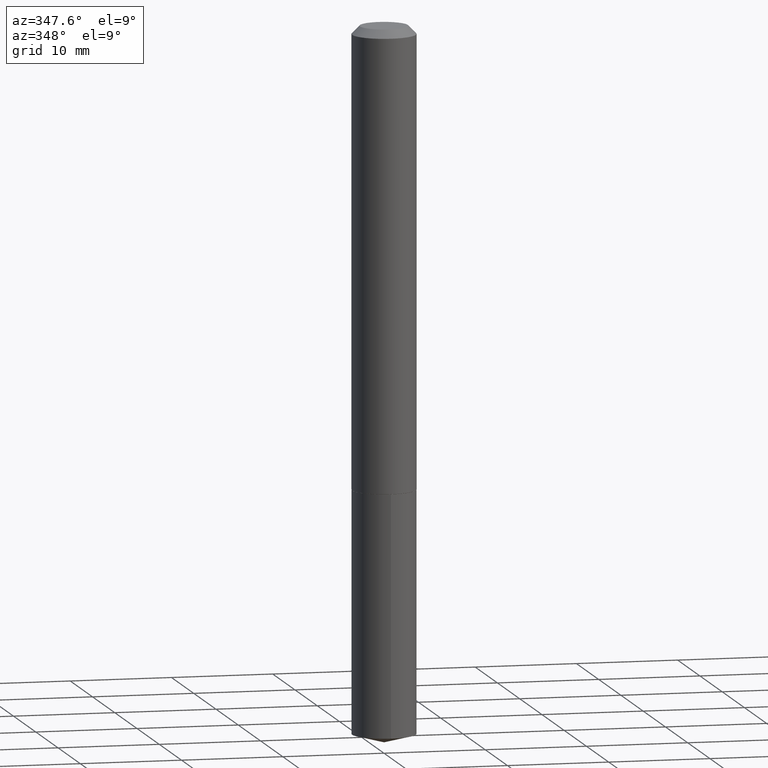
[diagram: clean part render]
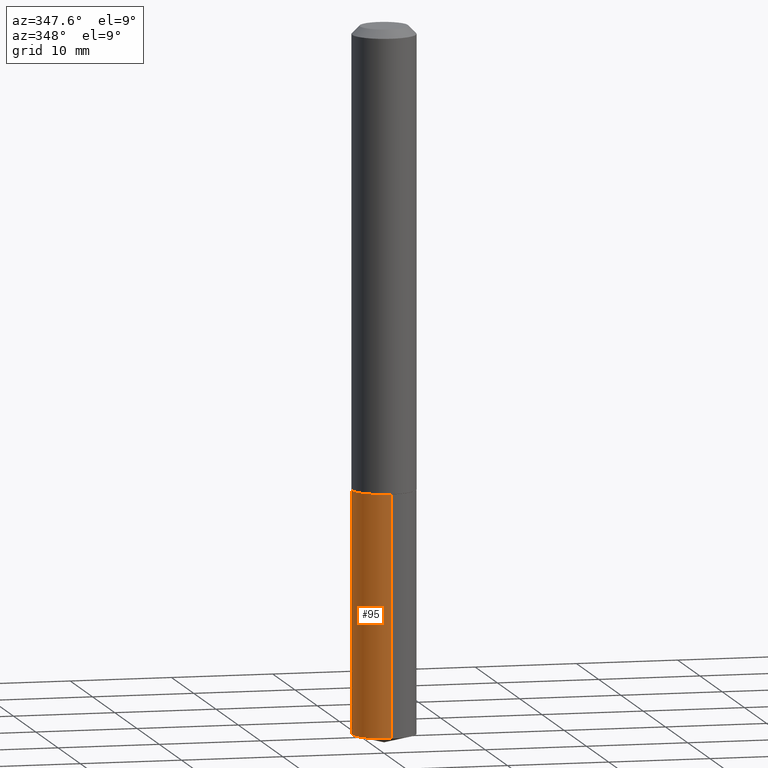
[diagram: same view with one face highlighted and labeled with its STEP entity id]
A machine part, auxiliary view. The second image highlights one B-rep face of the part: STEP entity #95.
In plain terms, the highlighted cylindrical surface (edge-blend (fillet) strip) has radius 3.1496 mm, axis along (-0, 0, 1).
Its self-contained STEP definition (entity closure, byte-faithful):
#17 = VERTEX_POINT ( 'NONE', #389 ) ;
#64 = EDGE_CURVE ( 'NONE', #294, #17, #323, .T. ) ;
#69 = CYLINDRICAL_SURFACE ( 'NONE', #385, 0.1239999999999999991 ) ;
#77 = DIRECTION ( 'NONE',  ( -2.445509388913140721E-29, 3.491423222066817992E-15, 1.000000000000000000 ) ) ;
#95 = ADVANCED_FACE ( 'NONE', ( #355 ), #69, .T. ) ;
#97 = EDGE_CURVE ( 'NONE', #128, #294, #149, .T. ) ;
#108 = CARTESIAN_POINT ( 'NONE',  ( 4.361249068950572264E-29, -6.226707819692865054E-15, -1.783399999999999874 ) ) ;
#109 = ORIENTED_EDGE ( 'NONE', *, *, #97, .T. ) ;
#115 = ORIENTED_EDGE ( 'NONE', *, *, #64, .T. ) ;
#128 = VERTEX_POINT ( 'NONE', #141 ) ;
#141 = CARTESIAN_POINT ( 'NONE',  ( 8.810729923425908829E-16, 0.1239999999999905067, -2.722674300138542502 ) ) ;
#147 = DIRECTION ( 'NONE',  ( -2.445509388913141001E-29, 3.491423222066818386E-15, 1.000000000000000000 ) ) ;
#149 = CIRCLE ( 'NONE', #201, 0.1239999999999999991 ) ;
#168 = CARTESIAN_POINT ( 'NONE',  ( 4.361249068950572264E-29, -6.226707819692865054E-15, -1.783399999999999874 ) ) ;
#180 = ORIENTED_EDGE ( 'NONE', *, *, #235, .F. ) ;
#183 = LINE ( 'NONE', #219, #369 ) ;
#197 = CARTESIAN_POINT ( 'NONE',  ( -8.658873720330533455E-16, -0.1240000000000062302, -1.783399999999999430 ) ) ;
#201 = AXIS2_PLACEMENT_3D ( 'NONE', #360, #77, #206 ) ;
#206 = DIRECTION ( 'NONE',  ( -6.982962677686265922E-15, -1.000000000000000000, 4.406206441393973340E-15 ) ) ;
#219 = CARTESIAN_POINT ( 'NONE',  ( 8.810729923425676115E-16, 0.1239999999999937680, -1.783400000000000540 ) ) ;
#235 = EDGE_CURVE ( 'NONE', #128, #367, #183, .T. ) ;
#240 = DIRECTION ( 'NONE',  ( -2.445509388913140721E-29, 3.491423222066817992E-15, 1.000000000000000000 ) ) ;
#280 = EDGE_CURVE ( 'NONE', #367, #17, #297, .T. ) ;
#294 = VERTEX_POINT ( 'NONE', #314 ) ;
#297 = CIRCLE ( 'NONE', #349, 0.1239999999999999991 ) ;
#314 = CARTESIAN_POINT ( 'NONE',  ( -8.658873720330303700E-16, -0.1240000000000095193, -2.722674300138541170 ) ) ;
#323 = LINE ( 'NONE', #197, #373 ) ;
#339 = EDGE_LOOP ( 'NONE', ( #180, #109, #115, #359 ) ) ;
#349 = AXIS2_PLACEMENT_3D ( 'NONE', #108, #240, #364 ) ;
#352 = DIRECTION ( 'NONE',  ( -2.445509388913141001E-29, 3.491423222066818386E-15, 1.000000000000000000 ) ) ;
#355 = FACE_OUTER_BOUND ( 'NONE', #339, .T. ) ;
#359 = ORIENTED_EDGE ( 'NONE', *, *, #280, .F. ) ;
#360 = CARTESIAN_POINT ( 'NONE',  ( 6.658253188704195551E-29, -9.506111923087129660E-15, -2.722674300138541614 ) ) ;
#364 = DIRECTION ( 'NONE',  ( -6.982962677686265922E-15, -1.000000000000000000, 4.406206441393973340E-15 ) ) ;
#367 = VERTEX_POINT ( 'NONE', #379 ) ;
#369 = VECTOR ( 'NONE', #147, 39.37007874015748143 ) ;
#373 = VECTOR ( 'NONE', #352, 39.37007874015748143 ) ;
#379 = CARTESIAN_POINT ( 'NONE',  ( 8.810729923425908829E-16, 0.1239999999999937819, -1.783400000000000540 ) ) ;
#384 = DIRECTION ( 'NONE',  ( -6.982962677686265922E-15, -1.000000000000000000, 4.406206441393973340E-15 ) ) ;
#385 = AXIS2_PLACEMENT_3D ( 'NONE', #168, #387, #384 ) ;
#387 = DIRECTION ( 'NONE',  ( -2.445509388913140721E-29, 3.491423222066817992E-15, 1.000000000000000000 ) ) ;
#389 = CARTESIAN_POINT ( 'NONE',  ( -8.658873720330533455E-16, -0.1240000000000062302, -1.783399999999999430 ) ) ;